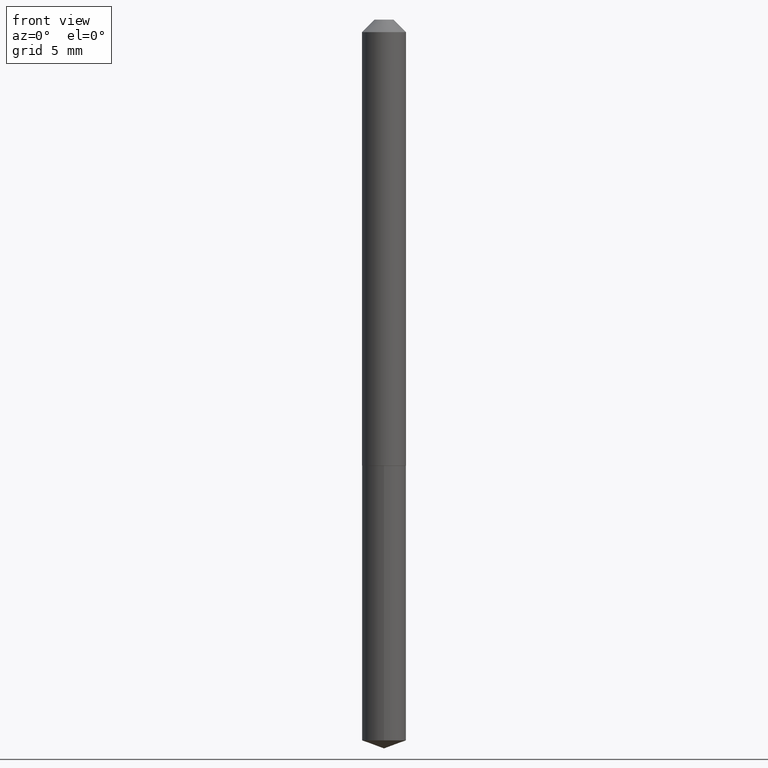
[diagram: clean part render]
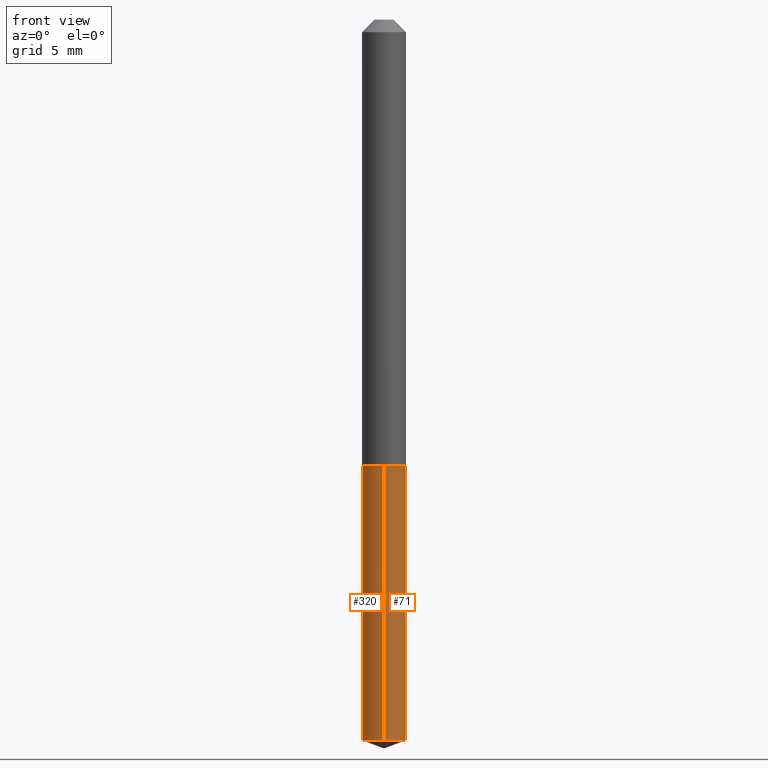
[diagram: same view with one multi-face feature highlighted, each face labeled with its STEP entity id]
A machine part, front view. The highlighted faces form ONE feature: a constant-radius fillet chain: 2 tangent blend faces with common blend radius 1.3894 mm. The faces share edges in the B-rep.
Their STEP definitions:
[1] entity #71 (Cylinder):
#23 = CIRCLE ( 'NONE', #150, 0.05469999999999999862 ) ;
#29 = VERTEX_POINT ( 'NONE', #300 ) ;
#34 = EDGE_CURVE ( 'NONE', #39, #370, #23, .T. ) ;
#39 = VERTEX_POINT ( 'NONE', #327 ) ;
#49 = EDGE_CURVE ( 'NONE', #29, #203, #301, .T. ) ;
#53 = ORIENTED_EDGE ( 'NONE', *, *, #246, .F. ) ;
#55 = CYLINDRICAL_SURFACE ( 'NONE', #200, 0.05469999999999999862 ) ;
#57 = DIRECTION ( 'NONE',  ( -6.982962677686265922E-15, -1.000000000000000000, 4.994237648380736877E-15 ) ) ;
#58 = CARTESIAN_POINT ( 'NONE',  ( 2.713003093581790888E-29, -3.873449397312585946E-15, -1.109400000000000164 ) ) ;
#71 = ADVANCED_FACE ( 'NONE', ( #174 ), #55, .T. ) ;
#96 = CARTESIAN_POINT ( 'NONE',  ( 3.886668764608184751E-16, 0.05469999999999372586, -1.792590828185639307 ) ) ;
#112 = ORIENTED_EDGE ( 'NONE', *, *, #34, .F. ) ;
#121 = DIRECTION ( 'NONE',  ( -2.445073400205194848E-29, 3.492047582711533107E-15, 1.000000000000000000 ) ) ;
#123 = LINE ( 'NONE', #363, #332 ) ;
#127 = CARTESIAN_POINT ( 'NONE',  ( 3.886668764608018597E-16, 0.05469999999999612672, -1.109400000000000164 ) ) ;
#134 = DIRECTION ( 'NONE',  ( -2.445073400205194848E-29, 3.492047582711533107E-15, 1.000000000000000000 ) ) ;
#147 = EDGE_CURVE ( 'NONE', #203, #370, #343, .T. ) ;
#150 = AXIS2_PLACEMENT_3D ( 'NONE', #58, #242, #296 ) ;
#174 = FACE_OUTER_BOUND ( 'NONE', #192, .T. ) ;
#181 = CARTESIAN_POINT ( 'NONE',  ( 2.713003093581790888E-29, -3.873449397312585946E-15, -1.109400000000000164 ) ) ;
#192 = EDGE_LOOP ( 'NONE', ( #323, #223, #112, #53 ) ) ;
#200 = AXIS2_PLACEMENT_3D ( 'NONE', #181, #121, #361 ) ;
#203 = VERTEX_POINT ( 'NONE', #96 ) ;
#223 = ORIENTED_EDGE ( 'NONE', *, *, #147, .T. ) ;
#242 = DIRECTION ( 'NONE',  ( -2.445073400205194848E-29, 3.492047582711533107E-15, 1.000000000000000000 ) ) ;
#246 = EDGE_CURVE ( 'NONE', #29, #39, #123, .T. ) ;
#260 = CARTESIAN_POINT ( 'NONE',  ( 3.886668764608186723E-16, 0.05469999999999611284, -1.109400000000000164 ) ) ;
#268 = CARTESIAN_POINT ( 'NONE',  ( 4.383454814842654207E-29, -6.259184277408935963E-15, -1.792590828185639085 ) ) ;
#277 = VECTOR ( 'NONE', #134, 39.37007874015748143 ) ;
#296 = DIRECTION ( 'NONE',  ( -6.982962677686265922E-15, -1.000000000000000000, 2.497118824190368439E-15 ) ) ;
#300 = CARTESIAN_POINT ( 'NONE',  ( -3.819680584693948069E-16, -0.05470000000000622975, -1.792590828185638641 ) ) ;
#301 = CIRCLE ( 'NONE', #321, 0.05469999999999999862 ) ;
#321 = AXIS2_PLACEMENT_3D ( 'NONE', #268, #356, #57 ) ;
#323 = ORIENTED_EDGE ( 'NONE', *, *, #49, .T. ) ;
#327 = CARTESIAN_POINT ( 'NONE',  ( -3.819680584694116195E-16, -0.05470000000000387747, -1.109399999999999942 ) ) ;
#332 = VECTOR ( 'NONE', #333, 39.37007874015748143 ) ;
#333 = DIRECTION ( 'NONE',  ( -2.445073400205194848E-29, 3.492047582711533107E-15, 1.000000000000000000 ) ) ;
#343 = LINE ( 'NONE', #127, #277 ) ;
#356 = DIRECTION ( 'NONE',  ( -2.445073400205194848E-29, 3.492047582711533107E-15, 1.000000000000000000 ) ) ;
#361 = DIRECTION ( 'NONE',  ( -6.982962677686265922E-15, -1.000000000000000000, 2.497118824190368439E-15 ) ) ;
#363 = CARTESIAN_POINT ( 'NONE',  ( -3.819680584694116195E-16, -0.05470000000000387747, -1.109399999999999942 ) ) ;
#370 = VERTEX_POINT ( 'NONE', #260 ) ;
[2] entity #320 (Cylinder):
#29 = VERTEX_POINT ( 'NONE', #300 ) ;
#39 = VERTEX_POINT ( 'NONE', #327 ) ;
#46 = CARTESIAN_POINT ( 'NONE',  ( 2.713003093581790888E-29, -3.873449397312585946E-15, -1.109400000000000164 ) ) ;
#81 = AXIS2_PLACEMENT_3D ( 'NONE', #367, #153, #255 ) ;
#90 = AXIS2_PLACEMENT_3D ( 'NONE', #304, #335, #372 ) ;
#96 = CARTESIAN_POINT ( 'NONE',  ( 3.886668764608184751E-16, 0.05469999999999372586, -1.792590828185639307 ) ) ;
#97 = EDGE_LOOP ( 'NONE', ( #290, #265, #384, #283 ) ) ;
#101 = EDGE_CURVE ( 'NONE', #370, #39, #257, .T. ) ;
#111 = DIRECTION ( 'NONE',  ( -2.445073400205194848E-29, 3.492047582711533107E-15, 1.000000000000000000 ) ) ;
#123 = LINE ( 'NONE', #363, #332 ) ;
#127 = CARTESIAN_POINT ( 'NONE',  ( 3.886668764608018597E-16, 0.05469999999999612672, -1.109400000000000164 ) ) ;
#134 = DIRECTION ( 'NONE',  ( -2.445073400205194848E-29, 3.492047582711533107E-15, 1.000000000000000000 ) ) ;
#147 = EDGE_CURVE ( 'NONE', #203, #370, #343, .T. ) ;
#153 = DIRECTION ( 'NONE',  ( -2.445073400205194848E-29, 3.492047582711533107E-15, 1.000000000000000000 ) ) ;
#156 = EDGE_CURVE ( 'NONE', #203, #29, #373, .T. ) ;
#198 = DIRECTION ( 'NONE',  ( -6.982962677686265922E-15, -1.000000000000000000, 2.497118824190368439E-15 ) ) ;
#203 = VERTEX_POINT ( 'NONE', #96 ) ;
#229 = FACE_OUTER_BOUND ( 'NONE', #97, .T. ) ;
#246 = EDGE_CURVE ( 'NONE', #29, #39, #123, .T. ) ;
#255 = DIRECTION ( 'NONE',  ( -6.982962677686265922E-15, -1.000000000000000000, 4.994237648380736877E-15 ) ) ;
#257 = CIRCLE ( 'NONE', #90, 0.05469999999999999862 ) ;
#259 = AXIS2_PLACEMENT_3D ( 'NONE', #46, #111, #198 ) ;
#260 = CARTESIAN_POINT ( 'NONE',  ( 3.886668764608186723E-16, 0.05469999999999611284, -1.109400000000000164 ) ) ;
#265 = ORIENTED_EDGE ( 'NONE', *, *, #156, .T. ) ;
#277 = VECTOR ( 'NONE', #134, 39.37007874015748143 ) ;
#283 = ORIENTED_EDGE ( 'NONE', *, *, #101, .F. ) ;
#287 = CYLINDRICAL_SURFACE ( 'NONE', #259, 0.05469999999999999862 ) ;
#290 = ORIENTED_EDGE ( 'NONE', *, *, #147, .F. ) ;
#300 = CARTESIAN_POINT ( 'NONE',  ( -3.819680584693948069E-16, -0.05470000000000622975, -1.792590828185638641 ) ) ;
#304 = CARTESIAN_POINT ( 'NONE',  ( 2.713003093581790888E-29, -3.873449397312585946E-15, -1.109400000000000164 ) ) ;
#320 = ADVANCED_FACE ( 'NONE', ( #229 ), #287, .T. ) ;
#327 = CARTESIAN_POINT ( 'NONE',  ( -3.819680584694116195E-16, -0.05470000000000387747, -1.109399999999999942 ) ) ;
#332 = VECTOR ( 'NONE', #333, 39.37007874015748143 ) ;
#333 = DIRECTION ( 'NONE',  ( -2.445073400205194848E-29, 3.492047582711533107E-15, 1.000000000000000000 ) ) ;
#335 = DIRECTION ( 'NONE',  ( -2.445073400205194848E-29, 3.492047582711533107E-15, 1.000000000000000000 ) ) ;
#343 = LINE ( 'NONE', #127, #277 ) ;
#363 = CARTESIAN_POINT ( 'NONE',  ( -3.819680584694116195E-16, -0.05470000000000387747, -1.109399999999999942 ) ) ;
#367 = CARTESIAN_POINT ( 'NONE',  ( 4.383454814842654207E-29, -6.259184277408935963E-15, -1.792590828185639085 ) ) ;
#370 = VERTEX_POINT ( 'NONE', #260 ) ;
#372 = DIRECTION ( 'NONE',  ( -6.982962677686265922E-15, -1.000000000000000000, 2.497118824190368439E-15 ) ) ;
#373 = CIRCLE ( 'NONE', #81, 0.05469999999999999862 ) ;
#384 = ORIENTED_EDGE ( 'NONE', *, *, #246, .T. ) ;